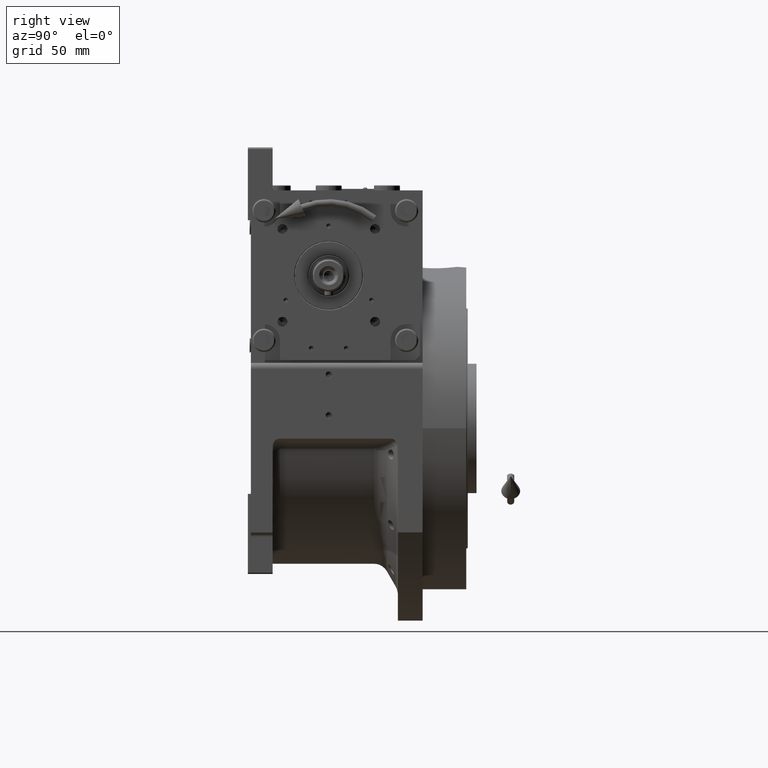
[diagram: clean part render]
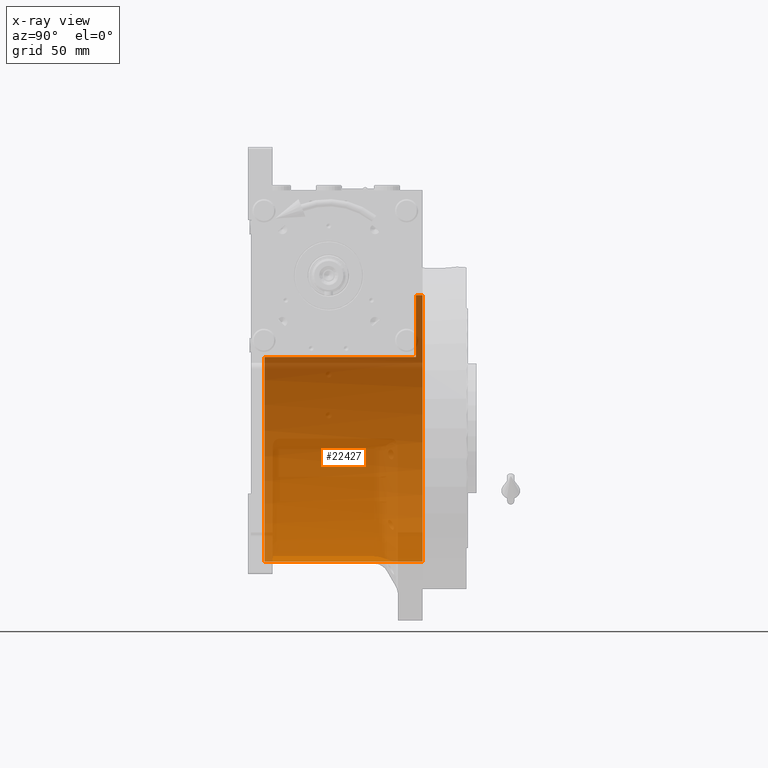
[diagram: x-ray — body ghosted, one internal face saturated and labeled with its STEP entity id]
A machine part, right view, then the same camera in x-ray: the body is ghosted and one INTERNAL B-rep face — a face not visible from any outside direction — is saturated and labeled: STEP entity #22427.
In plain terms, the highlighted cylindrical surface (partial cylindrical patch) has radius 91.5 mm, axis along (0, -1, 0).
Its self-contained STEP definition (entity closure, byte-faithful):
#3848 = VERTEX_POINT ( 'NONE', #17832 ) ;
#5280 = CARTESIAN_POINT ( 'NONE',  ( 0.000000000000000000, -44.00000000000000000, -91.50000000000000000 ) ) ;
#5405 = CIRCLE ( 'NONE', #46265, 91.50000000000000000 ) ;
#5548 = CARTESIAN_POINT ( 'NONE',  ( 1.120551821219827868E-14, 69.00000000000004263, 91.50000000000000000 ) ) ;
#5775 = EDGE_CURVE ( 'NONE', #65044, #10993, #26449, .T. ) ;
#6407 = VECTOR ( 'NONE', #35549, 1000.000000000000000 ) ;
#9234 = CARTESIAN_POINT ( 'NONE',  ( 0.000000000000000000, -44.00000000000000000, 0.000000000000000000 ) ) ;
#9635 = VERTEX_POINT ( 'NONE', #5280 ) ;
#10624 = EDGE_LOOP ( 'NONE', ( #41782, #38396, #13472, #51531, #34013, #38373 ) ) ;
#10724 = CARTESIAN_POINT ( 'NONE',  ( -77.27386362800814368, 60.00000000000000000, 48.99999999999998579 ) ) ;
#10993 = VERTEX_POINT ( 'NONE', #61331 ) ;
#11868 = EDGE_CURVE ( 'NONE', #3848, #65044, #56571, .T. ) ;
#12422 = DIRECTION ( 'NONE',  ( 0.000000000000000000, 0.000000000000000000, 1.000000000000000000 ) ) ;
#13472 = ORIENTED_EDGE ( 'NONE', *, *, #5775, .F. ) ;
#13722 = CARTESIAN_POINT ( 'NONE',  ( -77.27386362800812947, 69.00000000000004263, 48.99999999999998579 ) ) ;
#15400 = DIRECTION ( 'NONE',  ( 0.000000000000000000, 0.000000000000000000, 1.000000000000000000 ) ) ;
#16382 = DIRECTION ( 'NONE',  ( 0.000000000000000000, -1.000000000000000000, 0.000000000000000000 ) ) ;
#16530 = DIRECTION ( 'NONE',  ( 0.000000000000000000, 1.000000000000000000, 0.000000000000000000 ) ) ;
#17256 = DIRECTION ( 'NONE',  ( -0.000000000000000000, -1.000000000000000000, -0.000000000000000000 ) ) ;
#17318 = EDGE_CURVE ( 'NONE', #44118, #10993, #52904, .T. ) ;
#17832 = CARTESIAN_POINT ( 'NONE',  ( -77.27386362800814368, -44.00000000000000000, 49.00000000000000000 ) ) ;
#22427 = ADVANCED_FACE ( 'NONE', ( #26107 ), #68254, .F. ) ;
#22815 = CARTESIAN_POINT ( 'NONE',  ( 0.000000000000000000, 64.50000000000000000, 0.000000000000000000 ) ) ;
#25537 = VECTOR ( 'NONE', #67782, 1000.000000000000000 ) ;
#26107 = FACE_OUTER_BOUND ( 'NONE', #10624, .T. ) ;
#26449 = CIRCLE ( 'NONE', #46317, 91.50000000000000000 ) ;
#30386 = CARTESIAN_POINT ( 'NONE',  ( 0.000000000000000000, 69.00000000000004263, -91.50000000000000000 ) ) ;
#31296 = DIRECTION ( 'NONE',  ( 0.000000000000000000, 0.000000000000000000, -1.000000000000000000 ) ) ;
#32471 = DIRECTION ( 'NONE',  ( 1.776356839400250465E-15, 0.000000000000000000, -1.000000000000000000 ) ) ;
#34013 = ORIENTED_EDGE ( 'NONE', *, *, #67222, .F. ) ;
#34813 = DIRECTION ( 'NONE',  ( -0.000000000000000000, 1.000000000000000000, -0.000000000000000000 ) ) ;
#34945 = EDGE_CURVE ( 'NONE', #44118, #63067, #43365, .T. ) ;
#35549 = DIRECTION ( 'NONE',  ( 0.000000000000000000, -1.000000000000000000, 0.000000000000000000 ) ) ;
#38373 = ORIENTED_EDGE ( 'NONE', *, *, #41689, .F. ) ;
#38396 = ORIENTED_EDGE ( 'NONE', *, *, #17318, .T. ) ;
#41159 = AXIS2_PLACEMENT_3D ( 'NONE', #22815, #17256, #12422 ) ;
#41689 = EDGE_CURVE ( 'NONE', #63067, #9635, #50435, .T. ) ;
#41782 = ORIENTED_EDGE ( 'NONE', *, *, #34945, .F. ) ;
#42128 = VECTOR ( 'NONE', #34813, 1000.000000000000000 ) ;
#43365 = CIRCLE ( 'NONE', #41159, 91.50000000000000000 ) ;
#44118 = VERTEX_POINT ( 'NONE', #50381 ) ;
#46265 = AXIS2_PLACEMENT_3D ( 'NONE', #9234, #57240, #15400 ) ;
#46317 = AXIS2_PLACEMENT_3D ( 'NONE', #63906, #16530, #32471 ) ;
#48198 = CARTESIAN_POINT ( 'NONE',  ( 0.000000000000000000, 69.00000000000004263, 0.000000000000000000 ) ) ;
#50381 = CARTESIAN_POINT ( 'NONE',  ( 1.120551821219827868E-14, 64.50000000000000000, 91.50000000000000000 ) ) ;
#50435 = LINE ( 'NONE', #30386, #6407 ) ;
#51531 = ORIENTED_EDGE ( 'NONE', *, *, #11868, .F. ) ;
#52904 = LINE ( 'NONE', #5548, #25537 ) ;
#56571 = LINE ( 'NONE', #13722, #42128 ) ;
#57240 = DIRECTION ( 'NONE',  ( 0.000000000000000000, 1.000000000000000000, 0.000000000000000000 ) ) ;
#61331 = CARTESIAN_POINT ( 'NONE',  ( 1.120551821219827868E-14, 60.00000000000000000, 91.50000000000000000 ) ) ;
#63067 = VERTEX_POINT ( 'NONE', #63837 ) ;
#63069 = AXIS2_PLACEMENT_3D ( 'NONE', #48198, #16382, #31296 ) ;
#63837 = CARTESIAN_POINT ( 'NONE',  ( 0.000000000000000000, 64.50000000000000000, -91.50000000000000000 ) ) ;
#63906 = CARTESIAN_POINT ( 'NONE',  ( 0.000000000000000000, 60.00000000000000000, 0.000000000000000000 ) ) ;
#65044 = VERTEX_POINT ( 'NONE', #10724 ) ;
#67222 = EDGE_CURVE ( 'NONE', #9635, #3848, #5405, .T. ) ;
#67782 = DIRECTION ( 'NONE',  ( 0.000000000000000000, -1.000000000000000000, 0.000000000000000000 ) ) ;
#68254 = CYLINDRICAL_SURFACE ( 'NONE', #63069, 91.50000000000000000 ) ;